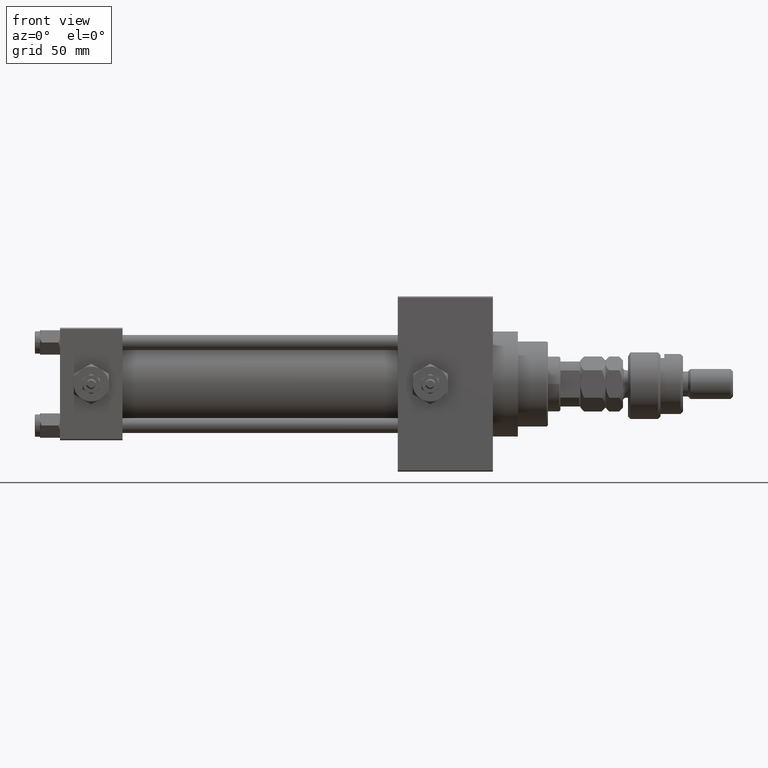
[diagram: clean part render]
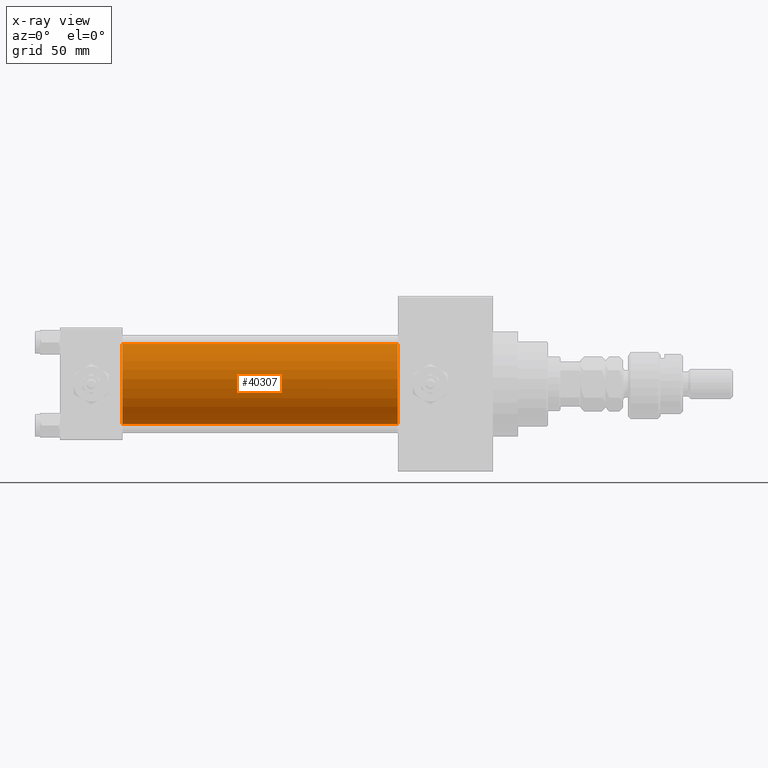
[diagram: x-ray — body ghosted, one internal face saturated and labeled with its STEP entity id]
A machine part, front view, then the same camera in x-ray: the body is ghosted and one INTERNAL B-rep face — a face not visible from any outside direction — is saturated and labeled: STEP entity #40307.
In plain terms, the highlighted cylindrical surface (partial cylindrical patch) has radius 16 mm, axis along (-1, -0, -0).
Its self-contained STEP definition (entity closure, byte-faithful):
#1416 = CYLINDRICAL_SURFACE ( 'NONE', #20161, 16.00000000000000000 ) ;
#2394 = DIRECTION ( 'NONE',  ( 1.000000000000000000, 0.000000000000000000, 0.000000000000000000 ) ) ;
#3524 = AXIS2_PLACEMENT_3D ( 'NONE', #3962, #43902, #19474 ) ;
#3659 = LINE ( 'NONE', #15494, #9505 ) ;
#3800 = VERTEX_POINT ( 'NONE', #13045 ) ;
#3962 = CARTESIAN_POINT ( 'NONE',  ( 135.0000000000000000, -2.602085213965210642E-15, 0.000000000000000000 ) ) ;
#5781 = CIRCLE ( 'NONE', #13353, 16.00000000000000000 ) ;
#6346 = CARTESIAN_POINT ( 'NONE',  ( 135.0000000000000000, -6.426503353294456087E-16, -16.00000000000000000 ) ) ;
#6922 = DIRECTION ( 'NONE',  ( 0.000000000000000000, 0.000000000000000000, 1.000000000000000000 ) ) ;
#9505 = VECTOR ( 'NONE', #36213, 1000.000000000000000 ) ;
#11456 = VERTEX_POINT ( 'NONE', #48922 ) ;
#11845 = VECTOR ( 'NONE', #30517, 1000.000000000000000 ) ;
#13045 = CARTESIAN_POINT ( 'NONE',  ( 135.0000000000000000, -6.426503353294456087E-16, -16.00000000000000000 ) ) ;
#13353 = AXIS2_PLACEMENT_3D ( 'NONE', #42855, #2394, #18424 ) ;
#14965 = EDGE_CURVE ( 'NONE', #35325, #24134, #5781, .T. ) ;
#15494 = CARTESIAN_POINT ( 'NONE',  ( 135.0000000000000000, -2.602085213965210642E-15, 16.00000000000000000 ) ) ;
#17046 = ORIENTED_EDGE ( 'NONE', *, *, #31141, .F. ) ;
#18424 = DIRECTION ( 'NONE',  ( 0.000000000000000000, 0.000000000000000000, -1.000000000000000000 ) ) ;
#18750 = DIRECTION ( 'NONE',  ( -1.000000000000000000, -0.000000000000000000, -0.000000000000000000 ) ) ;
#19352 = EDGE_LOOP ( 'NONE', ( #25099, #34307, #32222, #17046 ) ) ;
#19474 = DIRECTION ( 'NONE',  ( 0.000000000000000000, 0.000000000000000000, -1.000000000000000000 ) ) ;
#20161 = AXIS2_PLACEMENT_3D ( 'NONE', #35987, #18750, #6922 ) ;
#21119 = CARTESIAN_POINT ( 'NONE',  ( 25.00000000000000000, -6.426503353294456087E-16, -16.00000000000000000 ) ) ;
#22517 = EDGE_CURVE ( 'NONE', #3800, #24134, #50713, .T. ) ;
#24134 = VERTEX_POINT ( 'NONE', #21119 ) ;
#25099 = ORIENTED_EDGE ( 'NONE', *, *, #28128, .T. ) ;
#27854 = CIRCLE ( 'NONE', #3524, 16.00000000000000000 ) ;
#28128 = EDGE_CURVE ( 'NONE', #11456, #3800, #27854, .T. ) ;
#30517 = DIRECTION ( 'NONE',  ( -1.000000000000000000, -0.000000000000000000, -0.000000000000000000 ) ) ;
#31141 = EDGE_CURVE ( 'NONE', #11456, #35325, #3659, .T. ) ;
#32222 = ORIENTED_EDGE ( 'NONE', *, *, #14965, .F. ) ;
#34307 = ORIENTED_EDGE ( 'NONE', *, *, #22517, .T. ) ;
#35325 = VERTEX_POINT ( 'NONE', #35642 ) ;
#35642 = CARTESIAN_POINT ( 'NONE',  ( 25.00000000000000000, -2.602085213965210642E-15, 16.00000000000000000 ) ) ;
#35987 = CARTESIAN_POINT ( 'NONE',  ( 135.0000000000000000, -2.602085213965210642E-15, 0.000000000000000000 ) ) ;
#36213 = DIRECTION ( 'NONE',  ( -1.000000000000000000, -0.000000000000000000, -0.000000000000000000 ) ) ;
#37400 = FACE_OUTER_BOUND ( 'NONE', #19352, .T. ) ;
#40307 = ADVANCED_FACE ( 'NONE', ( #37400 ), #1416, .F. ) ;
#42855 = CARTESIAN_POINT ( 'NONE',  ( 25.00000000000000000, -2.602085213965210642E-15, 0.000000000000000000 ) ) ;
#43902 = DIRECTION ( 'NONE',  ( 1.000000000000000000, 0.000000000000000000, 0.000000000000000000 ) ) ;
#48922 = CARTESIAN_POINT ( 'NONE',  ( 135.0000000000000000, -2.602085213965210642E-15, 16.00000000000000000 ) ) ;
#50713 = LINE ( 'NONE', #6346, #11845 ) ;